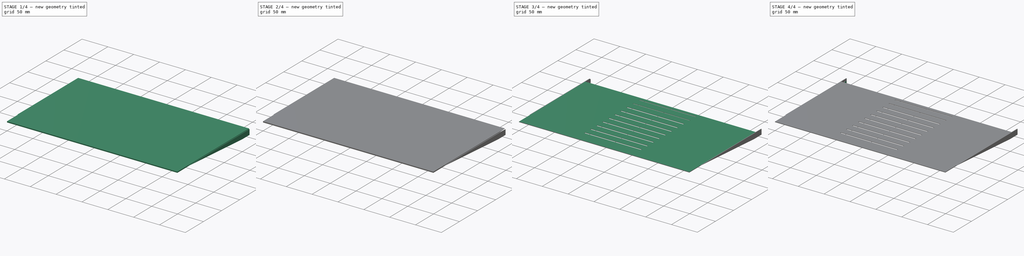
[diagram: build sequence overview — one tinted view per stage of 4, left to right]
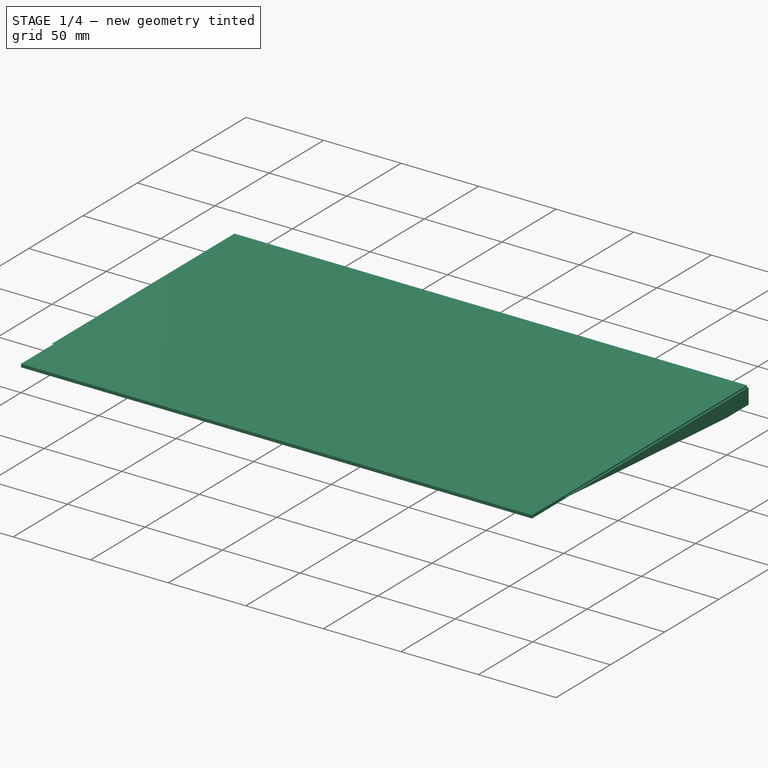
[diagram: stage 1 of 4 — iso view after this stage's code; geometry added in this stage tinted green]
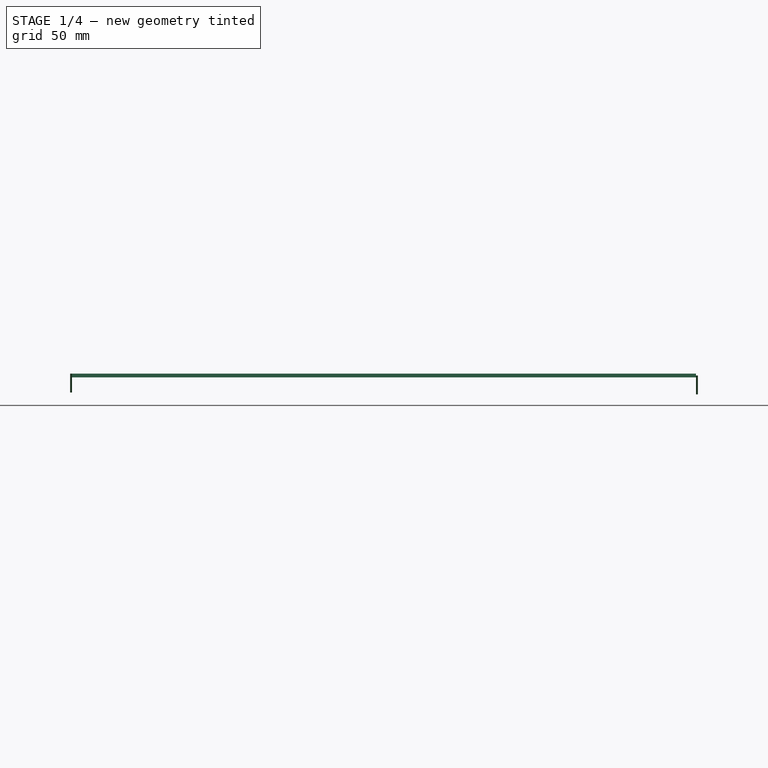
[diagram: stage 1 of 4 — front view after this stage's code; geometry added in this stage tinted green]
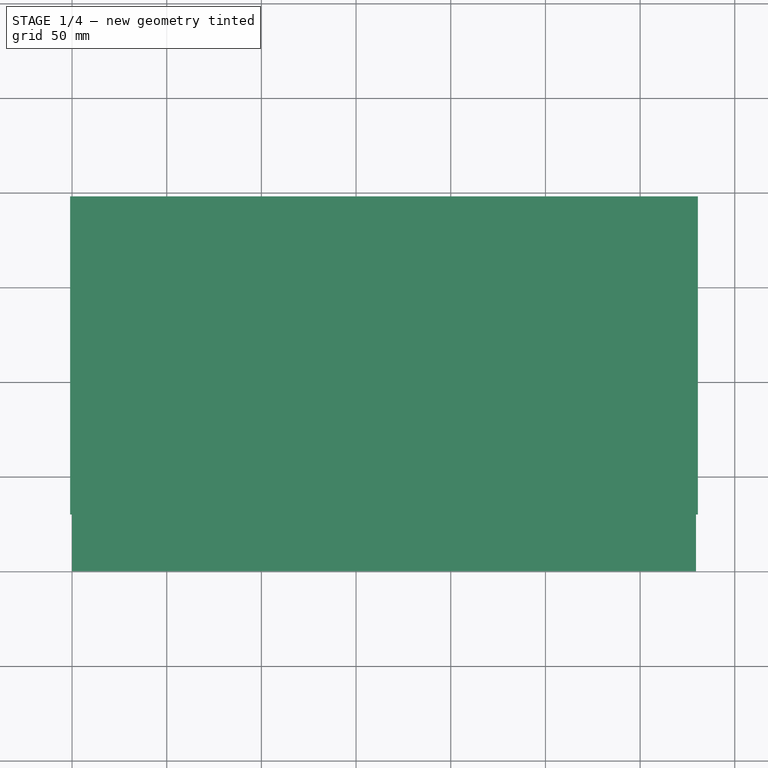
[diagram: stage 1 of 4 — top view after this stage's code; geometry added in this stage tinted green]
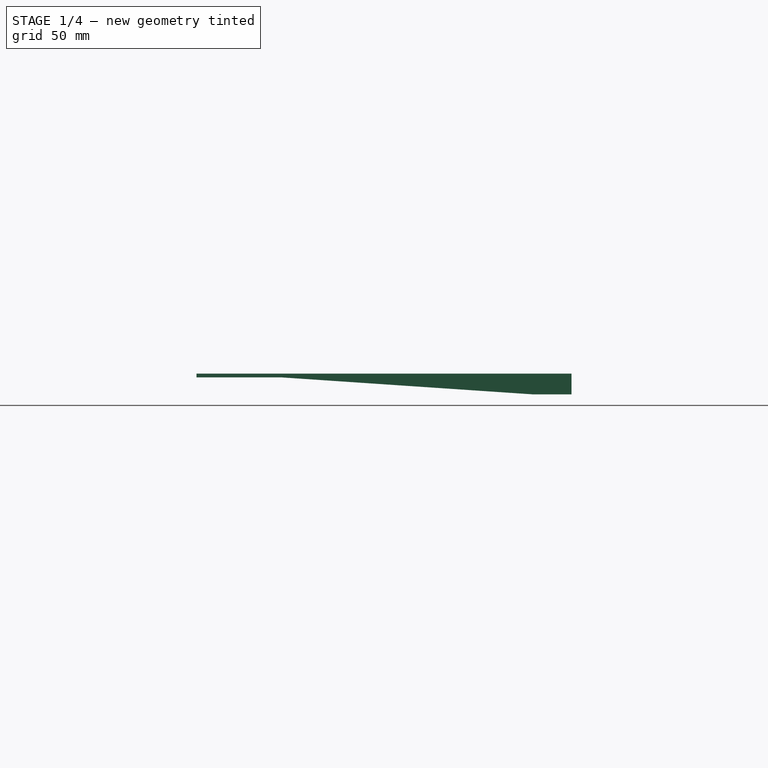
[diagram: stage 1 of 4 — right view after this stage's code; geometry added in this stage tinted green]
FCSTD DOCUMENT  (FreeCAD 0.18.4R)
Label: monitor_cradle_base
License: All rights reserved
LicenseURL: http://en.wikipedia.org/wiki/All_rights_reserved
objects: Sketcher::SketchObject×7, PartDesign::Pad×6, PartDesign::Pocket×2, PartDesign::Chamfer×2, PartDesign::Fillet×2, PartDesign::LinearPattern×1, PartDesign::Body×1
note: 29 computed .brp shape members not serialized (recipe doc carries the construction recipe); baked Part::Feature solids carry a one-line shape summary decoded from their .brp

FEATURE [Sketcher::SketchObject] Sketch  label="Base"
  MapMode = 5
  Support = -> [XY_Plane]
  sketch-geometry (4):
    g0: LineSegment StartX=0 StartY=0 StartZ=0 EndX=329.5 EndY=0 EndZ=0
    g1: LineSegment StartX=329.5 StartY=0 StartZ=0 EndX=329.5 EndY=198 EndZ=0
    g2: LineSegment StartX=329.5 StartY=198 StartZ=0 EndX=0 EndY=198 EndZ=0
    g3: LineSegment StartX=0 StartY=198 StartZ=0 EndX=0 EndY=0 EndZ=0
  constraints (11):
    c: Coincident(g0,g1)
    c: Coincident(g1,g2)
    c: Coincident(g2,g3)
    c: Coincident(g3,g0)
    c: Horizontal(g0)
    c: Horizontal(g2)
    c: Vertical(g1)
    c: Vertical(g3)
    c: DistanceX(g2,g2) = 329.5
    c: DistanceY(g3,g3) = 198
    c: Coincident(g0,g-1)
FEATURE [PartDesign::Pad] Pad
  Length = 2
  Length2 = 100
  Profile = -> Sketch
  Type = 0
FEATURE [Sketcher::SketchObject] CopySketch001  label="Left wing"
  Placement = pos=(329.5,0,0) rot=(0.57735,0.57735,0.57735;2.0944rad)
  sketch-geometry (4):
    g0: LineSegment StartX=178 StartY=-9 StartZ=0 EndX=198 EndY=-9 EndZ=0
    g1: LineSegment StartX=198 StartY=-9 StartZ=0 EndX=198 EndY=1 EndZ=0
    g2: LineSegment StartX=30 StartY=1 StartZ=0 EndX=178 EndY=-9 EndZ=0
    g3: LineSegment StartX=198 StartY=1 StartZ=0 EndX=30 EndY=1 EndZ=0
  constraints (10):
    c: Coincident(g0,g1)
    c: Horizontal(g0)
    c: Vertical(g1)
    c: Distance(g1) = 10
    c: Coincident(g3,g2)
    c: Horizontal(g3)
    c: DistanceX(g0,g0) = 20
    c: Coincident(g2,g0)
    c: Coincident(g3,g1)
    c: DistanceX(g3,g3) = 168
FEATURE [PartDesign::Pad] Pad001
  BaseFeature = -> Pad
  Length = 1
  Length2 = 100
  Profile = -> CopySketch001
  Type = 0
FEATURE [Sketcher::SketchObject] Sketch001  label="Right wing"
  ExternalGeometry = -> [Pad001]
  MapMode = 5
  Placement = pos=(0,0,0) rot=(0.57735,-0.57735,-0.57735;2.0944rad)
  Support = -> [Pad001]
  sketch-geometry (4):
    g0: LineSegment StartX=-177.174 StartY=-8 StartZ=0 EndX=-198 EndY=-8 EndZ=0
    g1: LineSegment StartX=-198 StartY=-8 StartZ=0 EndX=-198 EndY=2 EndZ=0
    g2: LineSegment StartX=-198 StartY=2 StartZ=0 EndX=-30 EndY=2 EndZ=0
    g3: LineSegment StartX=-177.174 StartY=-8 StartZ=0 EndX=-30 EndY=2 EndZ=0
  constraints (10):
    c: Coincident(g0,g1)
    c: Horizontal(g0)
    c: Vertical(g1)
    c: Distance(g1) = 10
    c: Horizontal(g2)
    c: Coincident(g2,g1)
    c: Coincident(g1,g-5)
    c: DistanceX(g2,g2) = 168
    c: Coincident(g3,g2)
    c: Coincident(g3,g0)
FEATURE [PartDesign::Pad] Pad002
  BaseFeature = -> Pad001
  Length = 1
  Length2 = 100
  Profile = -> Sketch001
  Type = 0
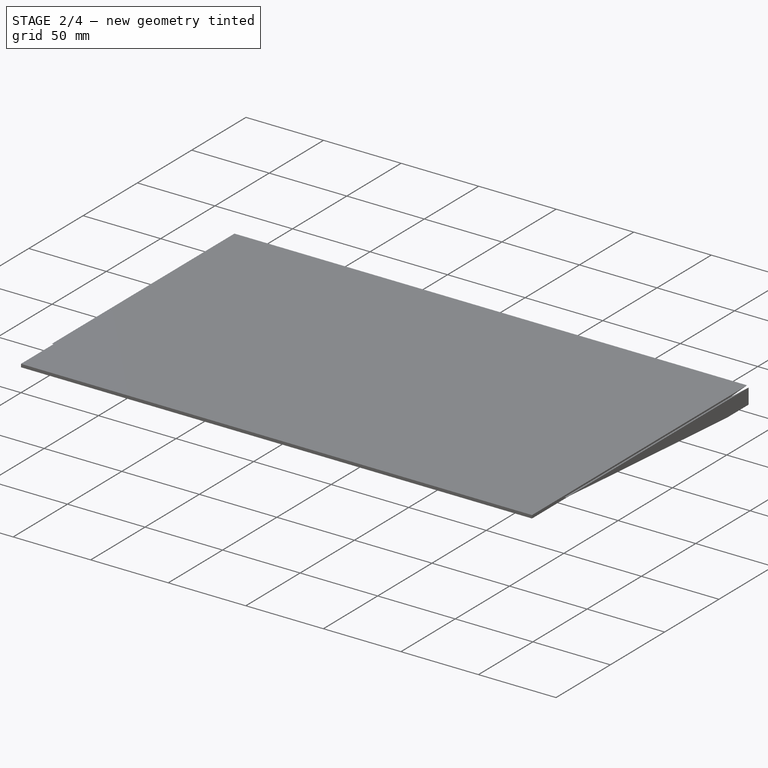
[diagram: stage 2 of 4 — iso view after this stage's code; geometry added in this stage tinted green]
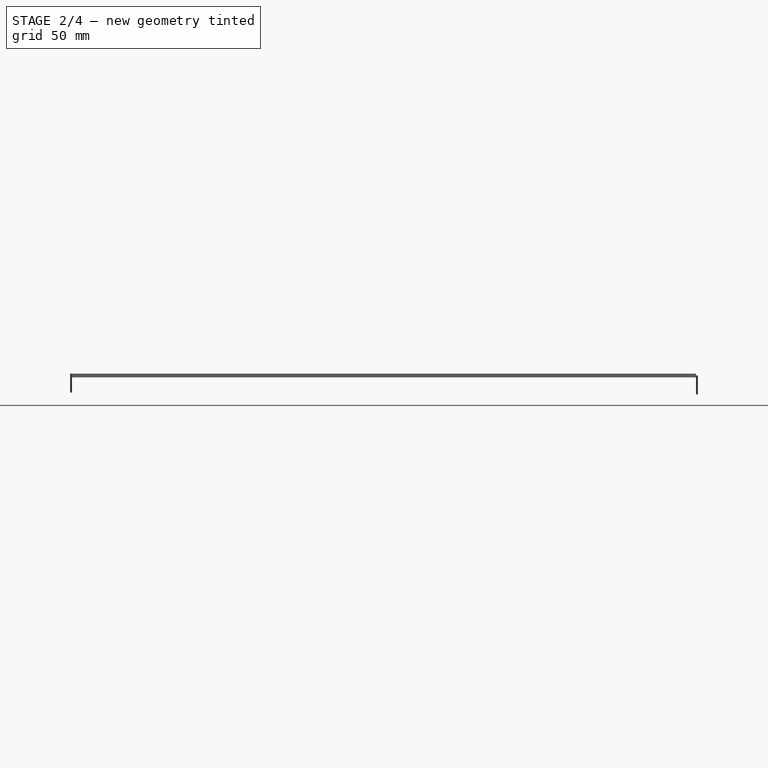
[diagram: stage 2 of 4 — front view after this stage's code; geometry added in this stage tinted green]
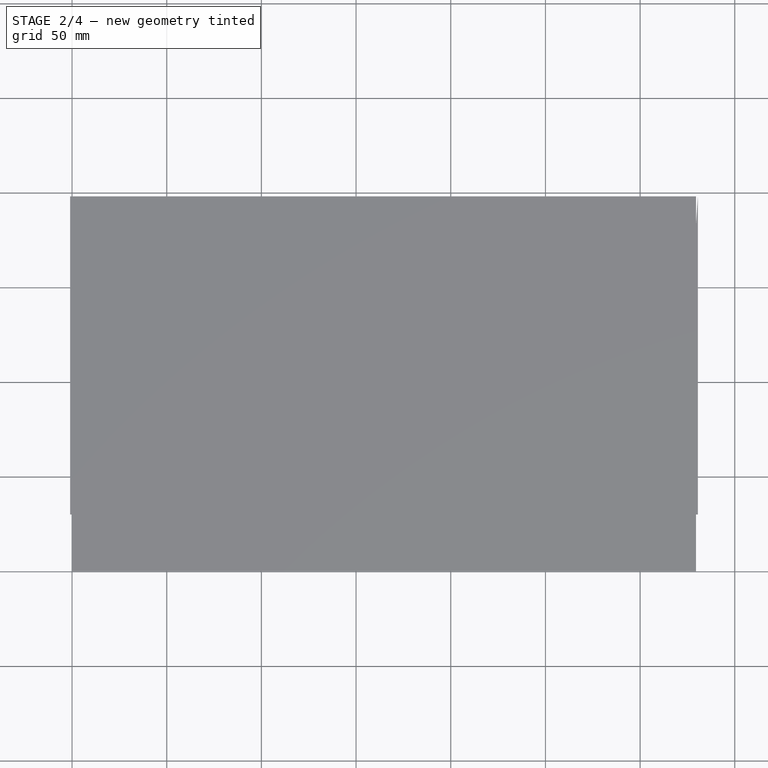
[diagram: stage 2 of 4 — top view after this stage's code; geometry added in this stage tinted green]
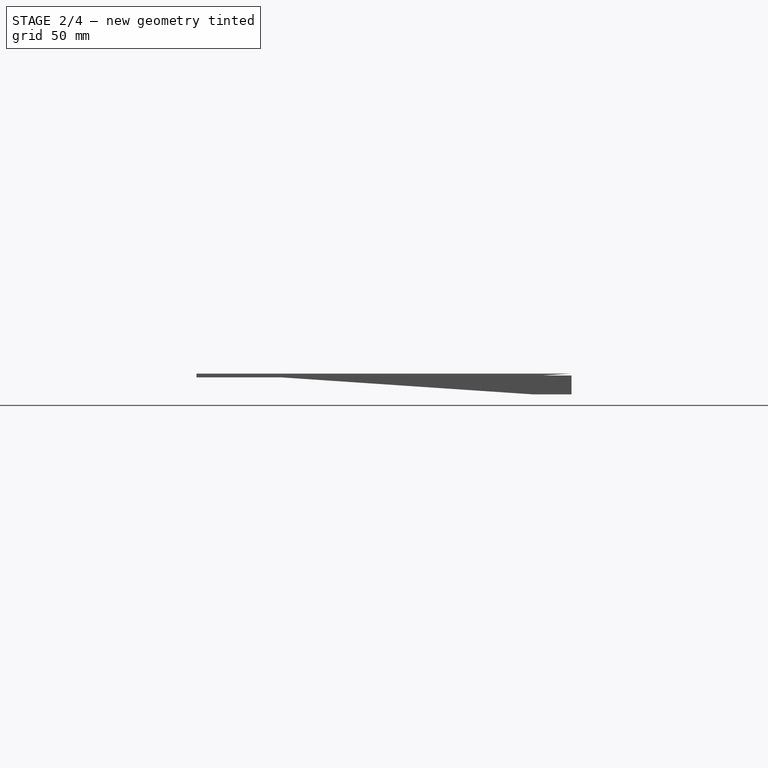
[diagram: stage 2 of 4 — right view after this stage's code; geometry added in this stage tinted green]
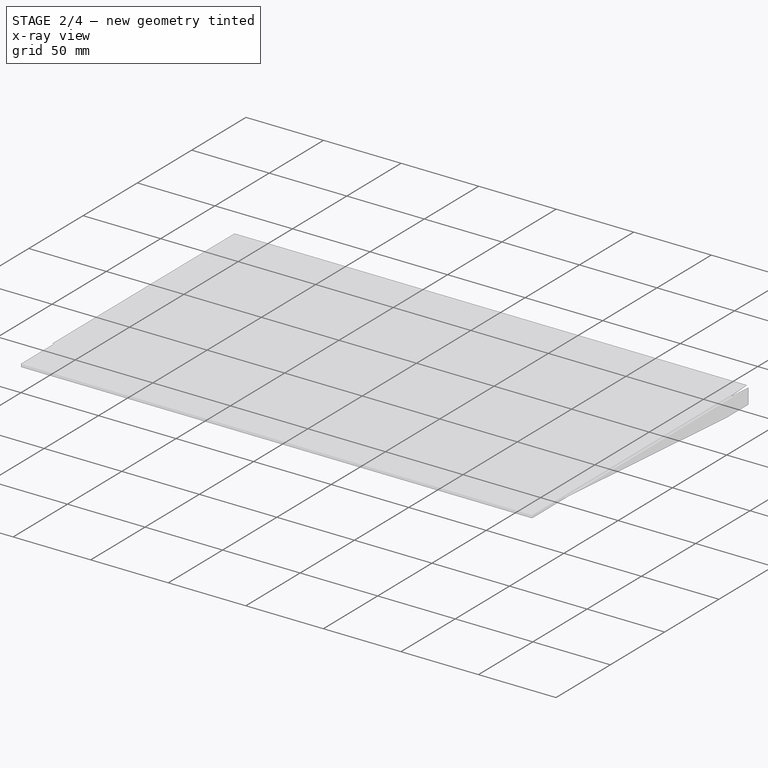
[diagram: stage 2 of 4 — x-ray composite at the iso view; earlier geometry ghosted, this stage's added geometry solid]
FEATURE [Sketcher::SketchObject] Sketch002  label="Right button"
  ExternalGeometry = -> [Pad002]
  MapMode = 5
  Placement = pos=(0,0,1) rot=(0,0,1;0rad)
  Support = -> [Pad002]
  sketch-geometry (1):
    g0: Circle CenterX=335.5 CenterY=25 CenterZ=0 NormalX=0 NormalY=0 NormalZ=1 AngleXU=0 Radius=2.9
  constraints (3):
    c: Radius(g0) = 2.9
    c: DistanceY(g0,g-5) = 5
    c: DistanceX(g0,g-5) = -5
FEATURE [Sketcher::SketchObject] Sketch004  label="Slots"
  MapMode = 5
  Placement = pos=(0,0,1) rot=(0,0,1;0rad)
  sketch-geometry (4):
    g0: LineSegment StartX=109 StartY=26.5 StartZ=0 EndX=219.5 EndY=26.5 EndZ=0
    g1: LineSegment StartX=219.5 StartY=26.5 StartZ=0 EndX=219.5 EndY=25 EndZ=0
    g2: LineSegment StartX=219.5 StartY=25 StartZ=0 EndX=109 EndY=25 EndZ=0
    g3: LineSegment StartX=109 StartY=25 StartZ=0 EndX=109 EndY=26.5 EndZ=0
  constraints (11):
    c: Coincident(g0,g1)
    c: Coincident(g1,g2)
    c: Coincident(g2,g3)
    c: Coincident(g3,g0)
    c: Horizontal(g0)
    c: Horizontal(g2)
    c: Vertical(g1)
    c: Vertical(g3)
    c: Distance(g0) = 110.5
    c: DistanceY(g-1,g2) = 25
    c: Distance(g1) = 1.5
FEATURE [PartDesign::Pocket] Pocket
  BaseFeature = -> Pad002
  Length = 5
  Length2 = 100
  Profile = -> Sketch004
  Type = 1
FEATURE [PartDesign::LinearPattern] LinearPattern
  BaseFeature = -> Pocket
  Direction = -> Sketch004 [V_Axis]
  Length = 150
  Occurrences = 10
  Originals = -> [Pocket]
FEATURE [Sketcher::SketchObject] Sketch005  label="Rear void"
  MapMode = 5
  Placement = pos=(0,0,1) rot=(0,0,1;0rad)
  sketch-geometry (4):
    g0: LineSegment StartX=0 StartY=198 StartZ=0 EndX=329.5 EndY=198 EndZ=0
    g1: LineSegment StartX=329.5 StartY=198 StartZ=0 EndX=329.5 EndY=183 EndZ=0
    g2: LineSegment StartX=329.5 StartY=183 StartZ=0 EndX=0 EndY=183 EndZ=0
    g3: LineSegment StartX=0 StartY=183 StartZ=0 EndX=0 EndY=198 EndZ=0
  constraints (9):
    c: Coincident(g0,g1)
    c: Coincident(g1,g2)
    c: Coincident(g2,g3)
    c: Coincident(g3,g0)
    c: Horizontal(g0)
    c: Horizontal(g2)
    c: Vertical(g1)
    c: Vertical(g3)
    c: DistanceY(g3,g3) = 15
FEATURE [PartDesign::Pocket] Pocket001
  BaseFeature = -> LinearPattern
  Length = 5
  Length2 = 100
  Profile = -> Sketch005
  Type = 1
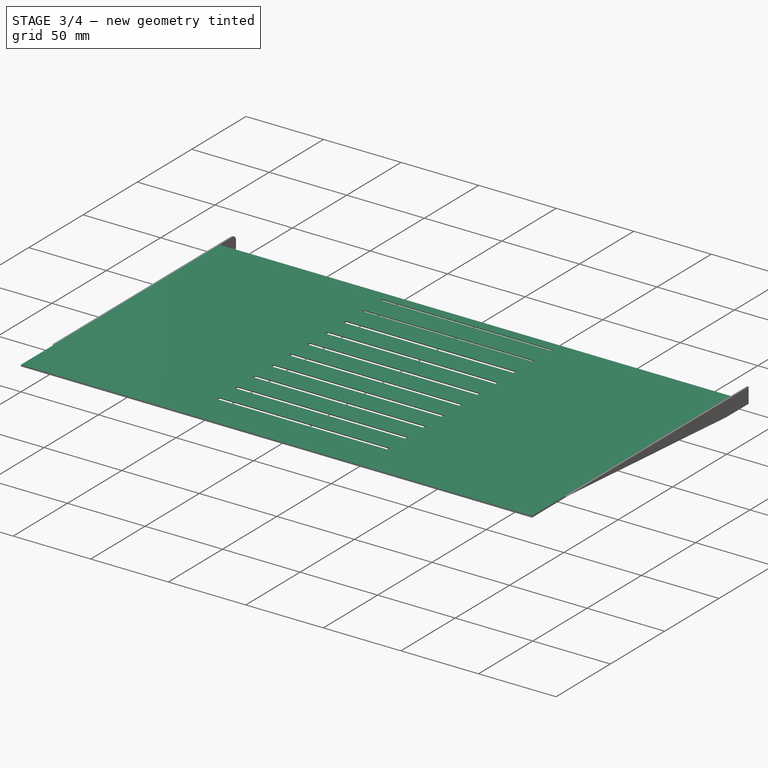
[diagram: stage 3 of 4 — iso view after this stage's code; geometry added in this stage tinted green]
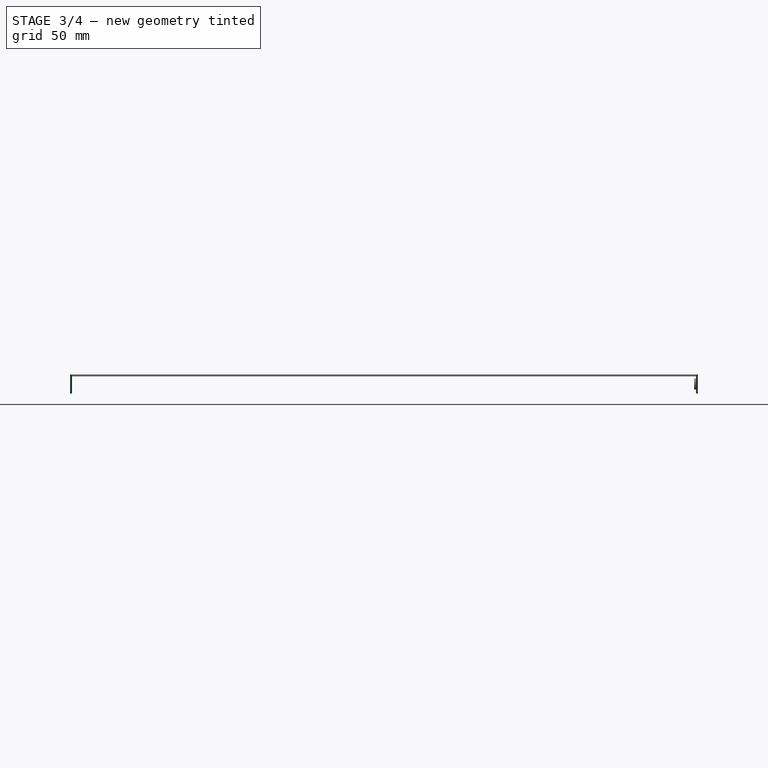
[diagram: stage 3 of 4 — front view after this stage's code; geometry added in this stage tinted green]
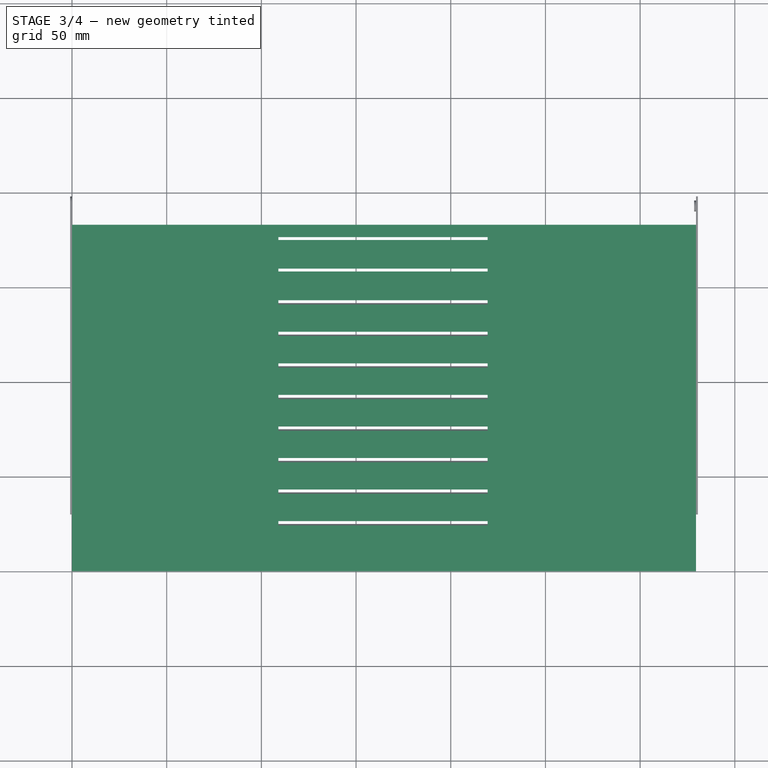
[diagram: stage 3 of 4 — top view after this stage's code; geometry added in this stage tinted green]
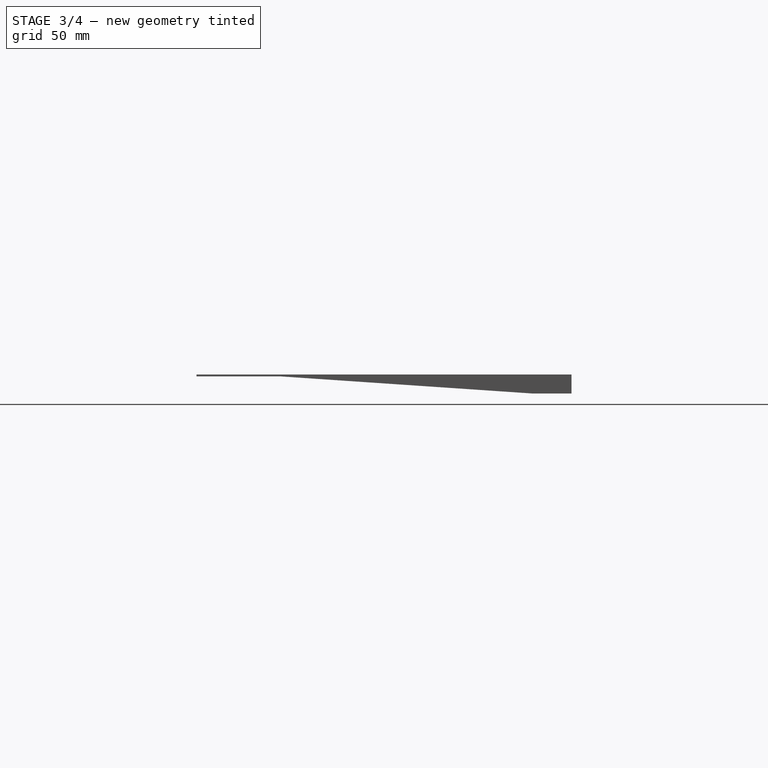
[diagram: stage 3 of 4 — right view after this stage's code; geometry added in this stage tinted green]
FEATURE [PartDesign::Chamfer] Chamfer001
  Base = -> Pocket001 [Edge78,Edge82,Edge86,Edge90,Edge70,Edge74,Edge66,Edge62]
  BaseFeature = -> Pocket001
  Size = 0.75
FEATURE [PartDesign::Chamfer] Chamfer
  Base = -> Chamfer001 [Edge105,Edge97,Edge173,Edge163,Edge153,Edge143,Edge133,Edge123,Edge113,Edge69]
  BaseFeature = -> Chamfer001
  Size = 0.75
FEATURE [PartDesign::Pad] Pad005
  BaseFeature = -> Chamfer
  Length = 1
  Length2 = 100
  Profile = -> Sketch002
  Type = 0
FEATURE [PartDesign::Fillet] Fillet
  Base = -> Pad005 [Edge245,Edge141]
  BaseFeature = -> Pad005
  Radius = 3
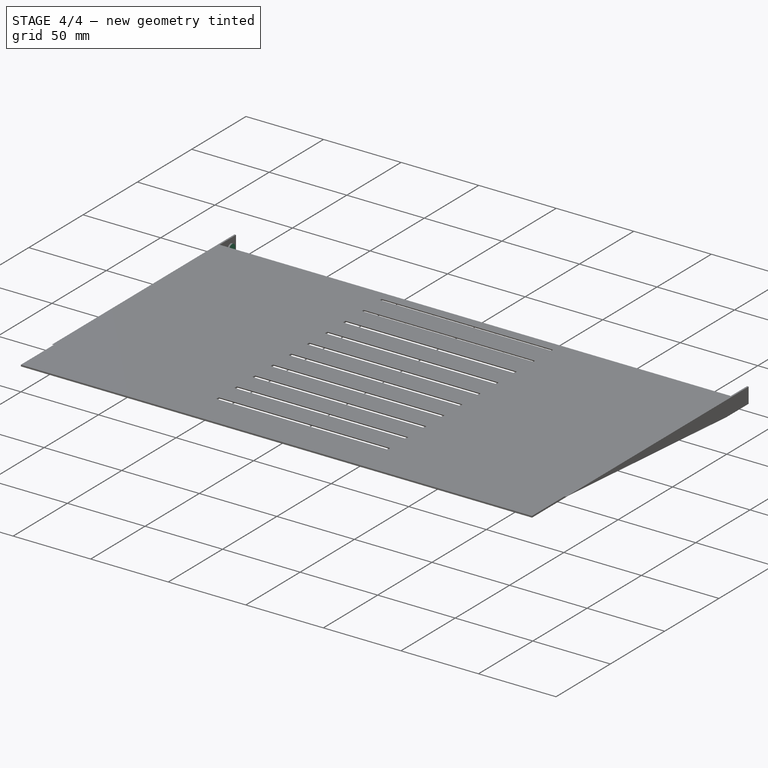
[diagram: stage 4 of 4 — iso view after this stage's code; geometry added in this stage tinted green]
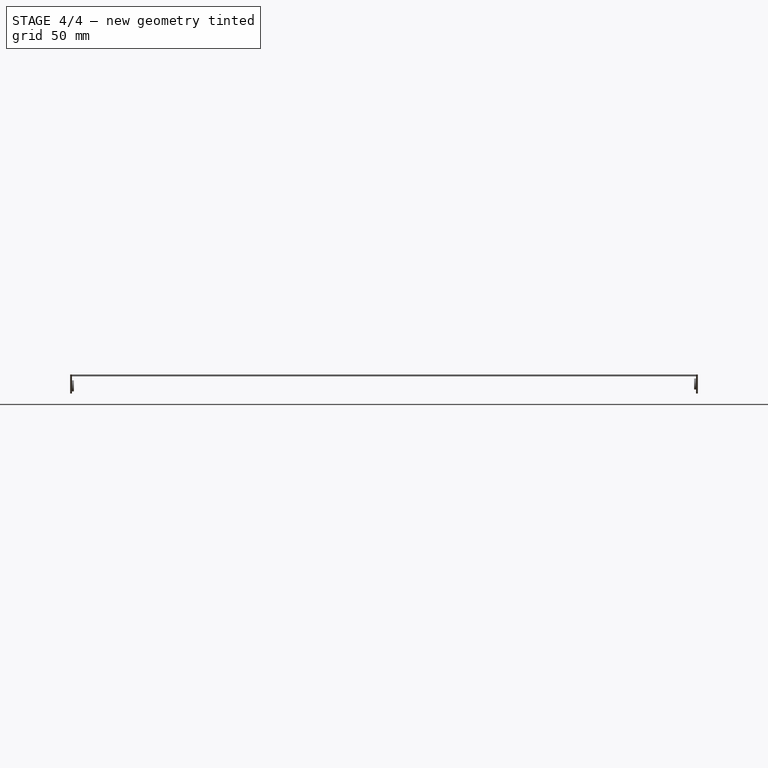
[diagram: stage 4 of 4 — front view after this stage's code; geometry added in this stage tinted green]
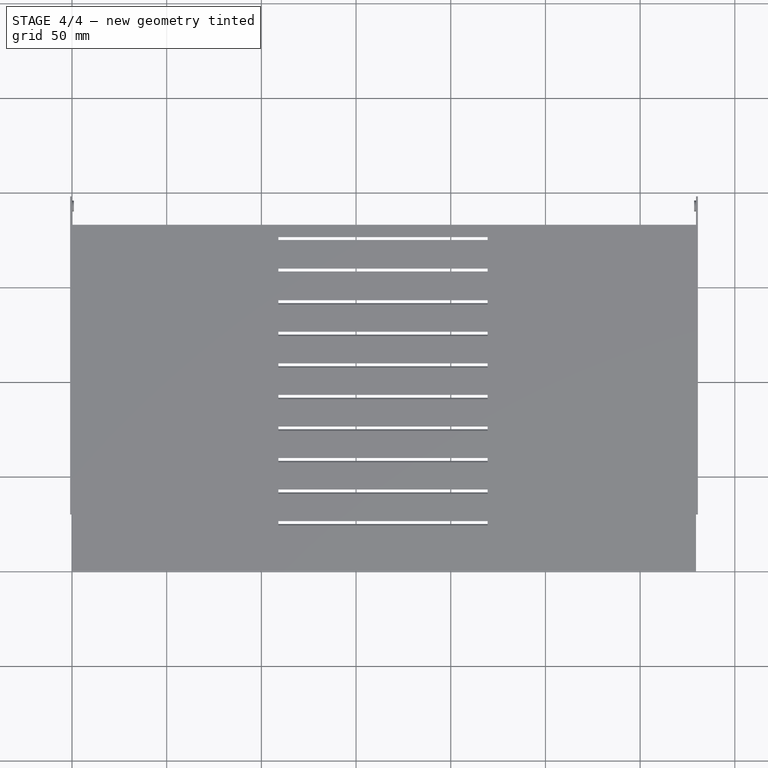
[diagram: stage 4 of 4 — top view after this stage's code; geometry added in this stage tinted green]
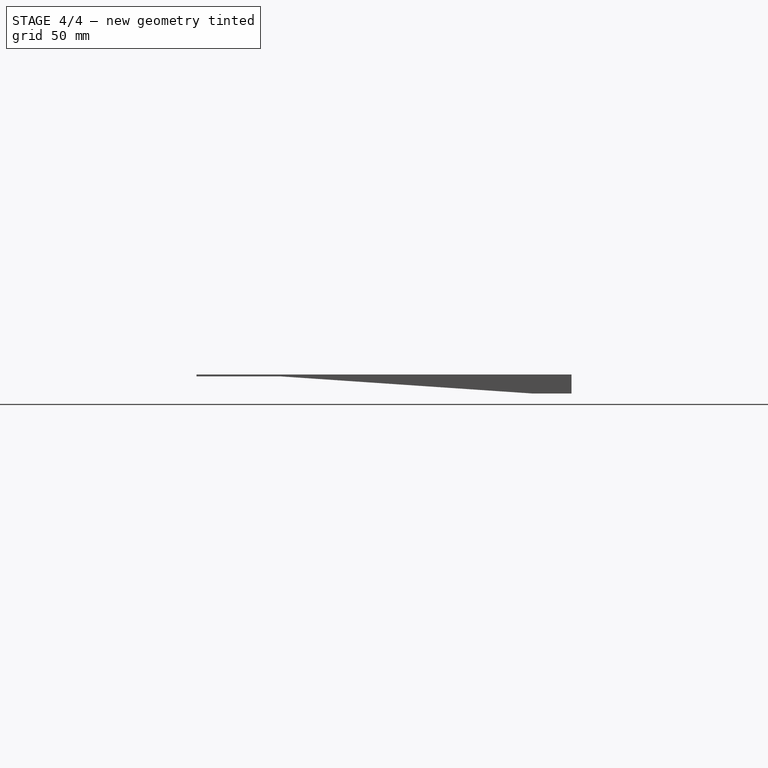
[diagram: stage 4 of 4 — right view after this stage's code; geometry added in this stage tinted green]
FEATURE [Sketcher::SketchObject] Sketch007
  ExternalGeometry = -> [Pad005]
  MapMode = 5
  Placement = pos=(0,0,0) rot=(0.57735,0.57735,0.57735;2.0944rad)
  Support = -> [Pad005]
  sketch-geometry (1):
    g0: Circle CenterX=193 CenterY=-5 CenterZ=0 NormalX=0 NormalY=0 NormalZ=1 AngleXU=0 Radius=2.9
  constraints (3):
    c: Radius(g0) = 2.9
    c: DistanceX(g0,g-3) = 5
    c: DistanceY(g0,g-3) = 5
FEATURE [PartDesign::Pad] Pad006
  BaseFeature = -> Pad005
  Length = 1
  Length2 = 100
  Profile = -> Sketch007
  Type = 0
FEATURE [PartDesign::Fillet] Fillet001
  Base = -> Fillet [Edge103,Edge257]
  BaseFeature = -> Fillet
  Radius = 3
FEATURE [PartDesign::Pad] Pad007
  BaseFeature = -> Fillet001
  Length = 1
  Length2 = 100
  Profile = -> Sketch007
  Type = 0
FEATURE [PartDesign::Body] Body
  Group = -> [Sketch,Pad,Pad001,Sketch001,Pad002,Sketch002,Sketch004,Pocket,LinearPattern,Sketch005,Pocket001,Chamfer001,Chamfer,Pad005,Sketch007,Pad006,Fillet,Fillet001,Pad007]
  Origin = -> Origin
  Tip = -> Pad007
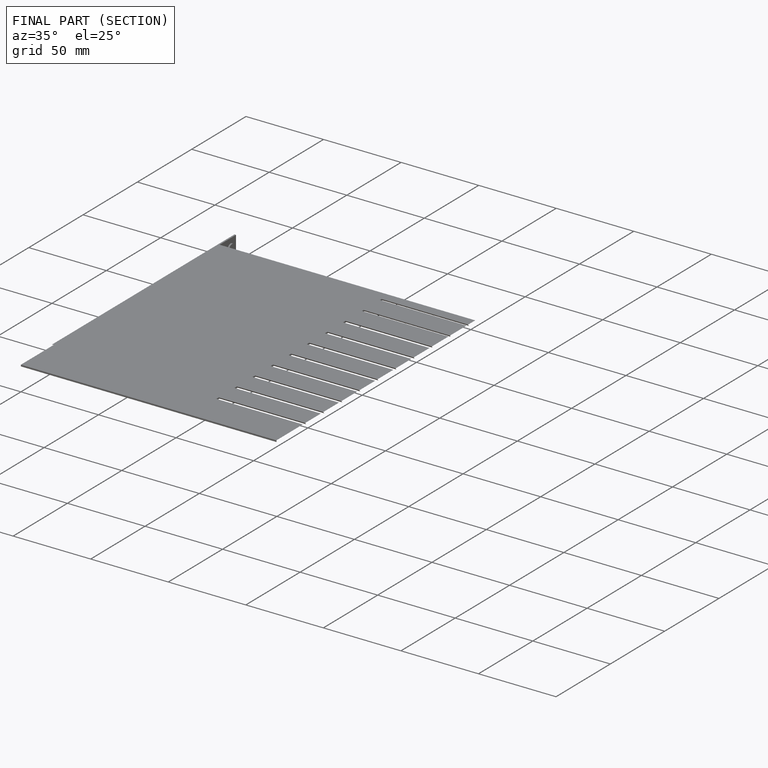
[diagram: finished part — half-section view (interior)]
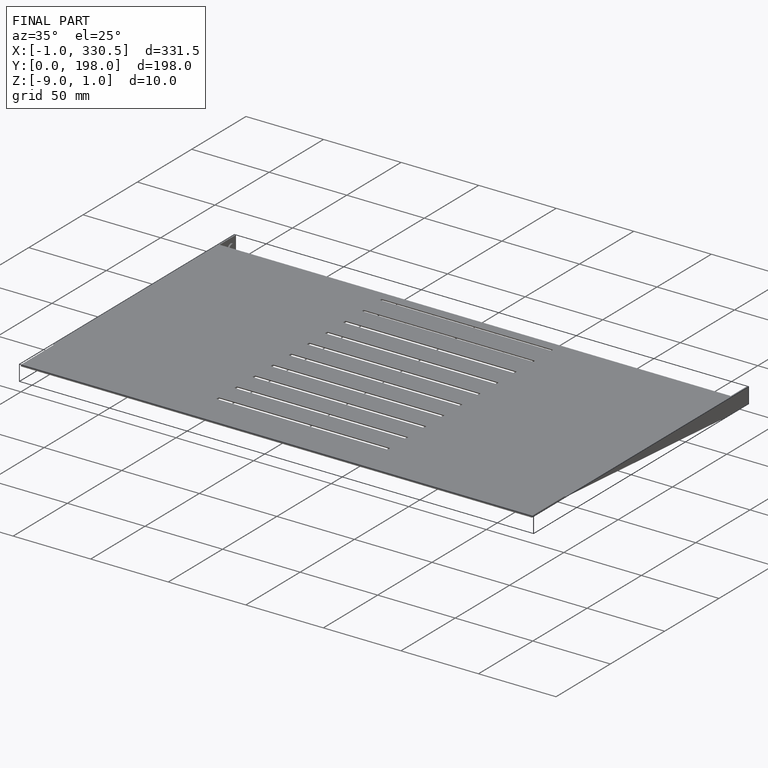
[diagram: finished part — iso view with bounding-box wireframe]
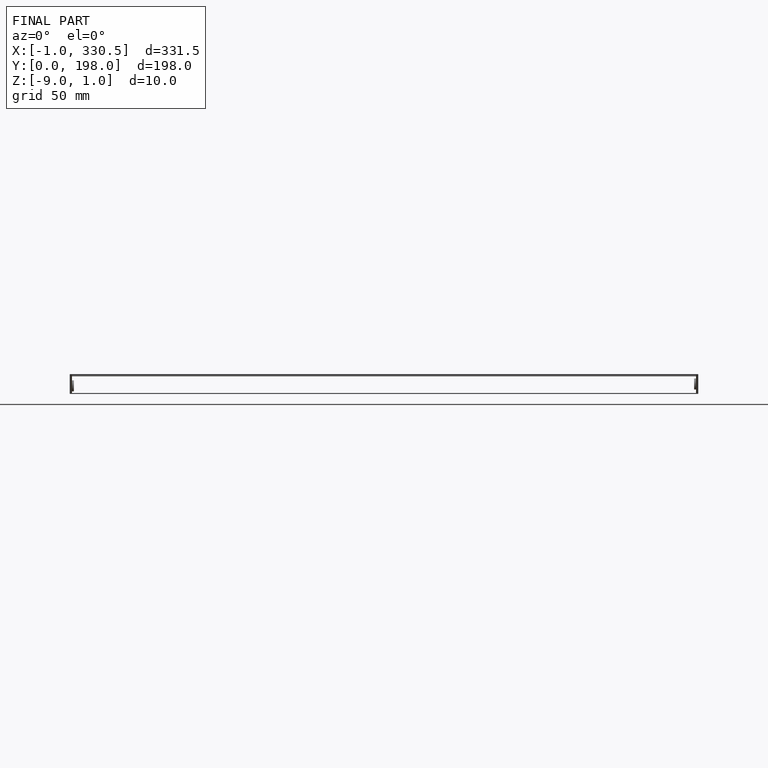
[diagram: finished part — front view with bounding-box wireframe]
